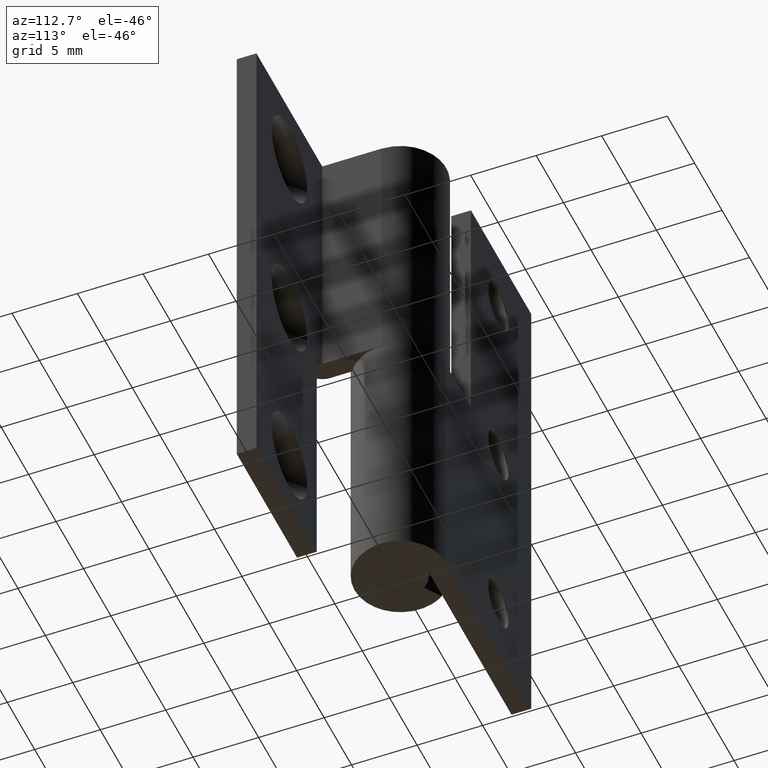
[diagram: clean part render]
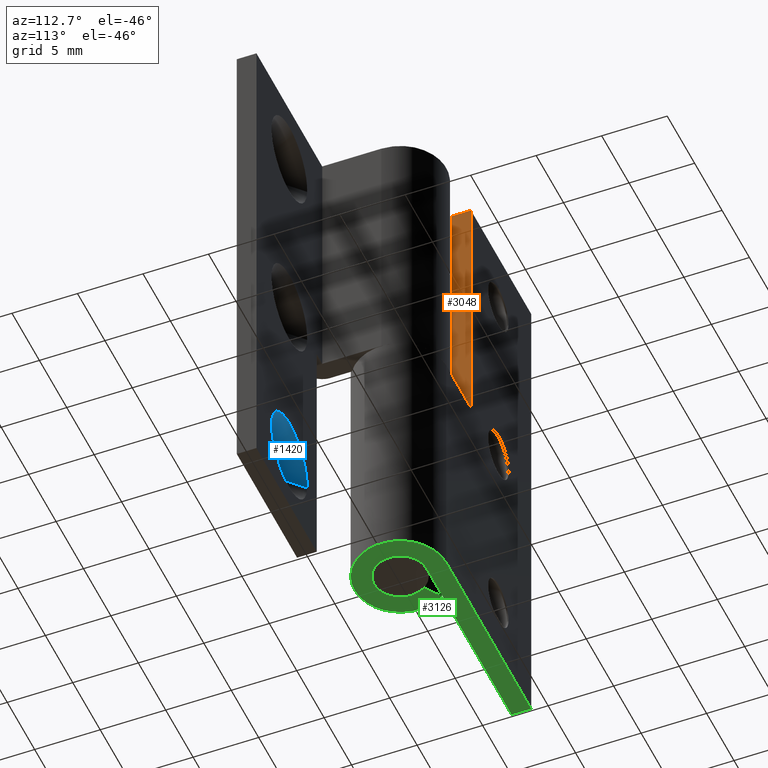
[diagram: same view with three faces highlighted in distinct colors, each labeled with its STEP entity id]
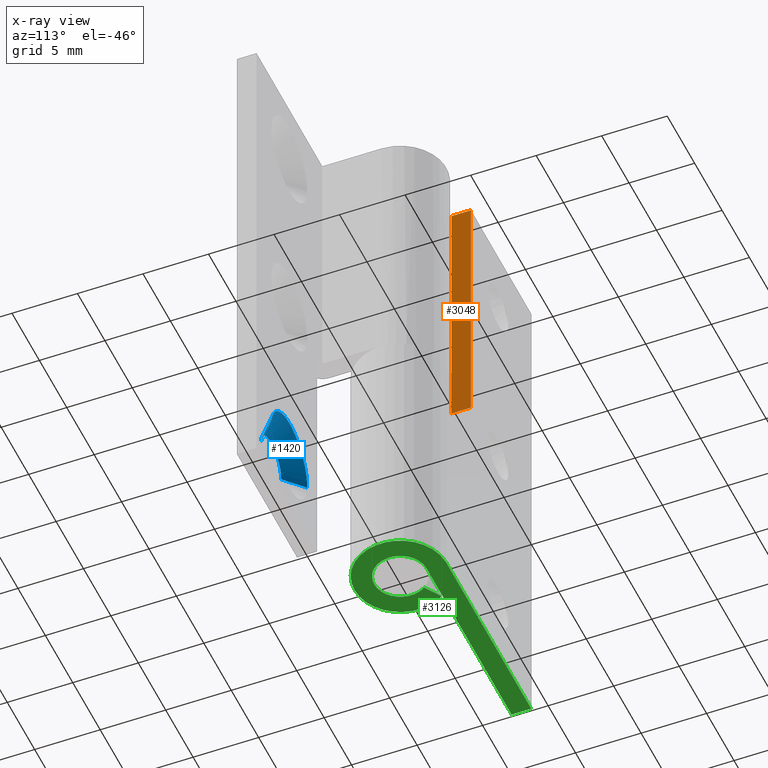
[diagram: x-ray of the same camera — body ghosted, the three highlighted faces saturated]
A machine part, auxiliary view with three faces highlighted in distinct colors.
The next image is the same camera in x-ray (body ghosted, the three faces saturated) — at least one of them is partly hidden behind the body in this view.
Their STEP definitions:

[orange] entity #3048 — the highlighted face is a freeform B-spline surface patch.
#2948=CARTESIAN_POINT('',(-4.500000000000000,3.499999999999950,20.0));
#2949=VERTEX_POINT('',#2948);
#2957=CARTESIAN_POINT('',(-4.500000000000000,2.0,20.0));
#2958=VERTEX_POINT('',#2957);
#2959=CARTESIAN_POINT('',(-4.500000000000000,2.0,20.0));
#2960=CARTESIAN_POINT('',(-4.500000000000000,3.499999999999950,20.0));
#2961=QUASI_UNIFORM_CURVE('',1,(#2959,#2960),.UNSPECIFIED.,.F.,.U.);
#2962=EDGE_CURVE('',#2958,#2949,#2961,.T.);
#3021=CARTESIAN_POINT('',(-4.500000000000000,1.925075002907291,40.998999961236123));
#3022=CARTESIAN_POINT('',(-4.500000000000000,1.925075002907291,19.000999502322081));
#3023=CARTESIAN_POINT('',(-4.500000000000000,3.574925037325844,40.998999961236123));
#3024=CARTESIAN_POINT('',(-4.500000000000000,3.574925037325844,19.000999502322081));
#3025=B_SPLINE_SURFACE_WITH_KNOTS('',1,1,((#3021,#3023),(#3022,#3024)),.UNSPECIFIED.,.F.,.F.,.U.,(2,2),(2,2),(0.0,21.998000458914049),(0.041708334948495,0.958291687403247),.UNSPECIFIED.);
#3026=ORIENTED_EDGE('',*,*,#2962,.T.);
#3027=CARTESIAN_POINT('',(-4.500000000000000,3.500000000000000,40.0));
#3028=VERTEX_POINT('',#3027);
#3029=CARTESIAN_POINT('',(-4.500000000000000,3.500000000000000,40.0));
#3030=CARTESIAN_POINT('',(-4.500000000000000,3.499999999999950,20.0));
#3031=QUASI_UNIFORM_CURVE('',1,(#3029,#3030),.UNSPECIFIED.,.F.,.U.);
#3032=EDGE_CURVE('',#3028,#2949,#3031,.T.);
#3033=ORIENTED_EDGE('',*,*,#3032,.F.);
#3034=CARTESIAN_POINT('',(-4.500000000000000,2.0,40.0));
#3035=VERTEX_POINT('',#3034);
#3036=CARTESIAN_POINT('',(-4.500000000000000,2.0,40.0));
#3037=CARTESIAN_POINT('',(-4.500000000000000,3.500000000000000,40.0));
#3038=QUASI_UNIFORM_CURVE('',1,(#3036,#3037),.UNSPECIFIED.,.F.,.U.);
#3039=EDGE_CURVE('',#3035,#3028,#3038,.T.);
#3040=ORIENTED_EDGE('',*,*,#3039,.F.);
#3041=CARTESIAN_POINT('',(-4.500000000000000,2.0,20.0));
#3042=CARTESIAN_POINT('',(-4.500000000000000,2.0,40.0));
#3043=QUASI_UNIFORM_CURVE('',1,(#3041,#3042),.UNSPECIFIED.,.F.,.U.);
#3044=EDGE_CURVE('',#2958,#3035,#3043,.T.);
#3045=ORIENTED_EDGE('',*,*,#3044,.F.);
#3046=EDGE_LOOP('',(#3026,#3033,#3040,#3045));
#3047=FACE_OUTER_BOUND('',#3046,.T.);
#3048=ADVANCED_FACE('',(#3047),#3025,.T.);

[blue] entity #1420 — the highlighted face is a freeform B-spline surface patch.
#1128=CARTESIAN_POINT('',(7.653450622905748,-5.899999999948507,4.887060201664394));
#1129=VERTEX_POINT('',#1128);
#1210=CARTESIAN_POINT('',(11.337067623776241,-5.899999999947706,5.218363334528995));
#1211=VERTEX_POINT('',#1210);
#1261=CARTESIAN_POINT('',(9.500000000000000,-5.900000000000000,6.850000000000001));
#1262=VERTEX_POINT('',#1261);
#1263=CARTESIAN_POINT('',(7.653450622905748,-5.899999999948507,4.887060201664394));
#1264=CARTESIAN_POINT('',(7.650000000000000,-5.900000000000000,4.943477387507420));
#1265=CARTESIAN_POINT('',(7.650000000000000,-5.900000000000000,5.0));
#1266=CARTESIAN_POINT('',(7.650000000000000,-5.900000000000000,6.850000000000001));
#1267=CARTESIAN_POINT('',(9.500000000000000,-5.900000000000000,6.850000000000001));
#1275=(BOUNDED_CURVE()B_SPLINE_CURVE(2,(#1263,#1264,#1265,#1266,#1267),.UNSPECIFIED.,.F.,.U.)B_SPLINE_CURVE_WITH_KNOTS((3,2,3),(0.739332962169251,0.750000000000000,1.0),.UNSPECIFIED.)CURVE()GEOMETRIC_REPRESENTATION_ITEM()RATIONAL_B_SPLINE_CURVE((0.976072041517355,0.987502787818188,1.0,0.707106781186548,1.0))REPRESENTATION_ITEM(''));
#1276=EDGE_CURVE('',#1129,#1262,#1275,.T.);
#1278=CARTESIAN_POINT('',(9.500000000000000,-5.900000000000000,6.850000000000001));
#1279=CARTESIAN_POINT('',(11.143122872275367,-5.899999999999999,6.850000000000001));
#1280=CARTESIAN_POINT('',(11.337067623776239,-5.899999999947706,5.218363334528995));
#1288=(BOUNDED_CURVE()B_SPLINE_CURVE(2,(#1278,#1279,#1280),.UNSPECIFIED.,.F.,.U.)B_SPLINE_CURVE_WITH_KNOTS((3,3),(0.0,0.229562473440609),.UNSPECIFIED.)CURVE()GEOMETRIC_REPRESENTATION_ITEM()RATIONAL_B_SPLINE_CURVE((1.0,0.731050832940810,0.956026754040813))REPRESENTATION_ITEM(''));
#1289=EDGE_CURVE('',#1262,#1211,#1288,.T.);
#1317=CARTESIAN_POINT('',(12.727280960683350,-4.499999999979497,5.383611262796149));
#1318=VERTEX_POINT('',#1317);
#1319=CARTESIAN_POINT('',(11.337067623776241,-5.899999999947706,5.218363334528995));
#1320=CARTESIAN_POINT('',(12.727280960683350,-4.499999999979497,5.383611262796149));
#1321=QUASI_UNIFORM_CURVE('',1,(#1319,#1320),.UNSPECIFIED.,.F.,.U.);
#1322=EDGE_CURVE('',#1211,#1318,#1321,.T.);
#1341=CARTESIAN_POINT('',(6.256061905112270,-4.499999999968992,4.801592246276229));
#1342=VERTEX_POINT('',#1341);
#1356=CARTESIAN_POINT('',(7.653450622905748,-5.899999999948507,4.887060201664394));
#1357=CARTESIAN_POINT('',(6.256061905112270,-4.499999999968992,4.801592246276229));
#1358=QUASI_UNIFORM_CURVE('',1,(#1356,#1357),.UNSPECIFIED.,.F.,.U.);
#1359=EDGE_CURVE('',#1129,#1342,#1358,.T.);
#1366=CARTESIAN_POINT('',(7.688385340864312,-5.935000000000001,4.889196900744235));
#1367=CARTESIAN_POINT('',(7.577582241608548,-5.935000000000001,6.700811559879923));
#1368=CARTESIAN_POINT('',(9.389196900744235,-5.935000000000001,6.811614659135688));
#1369=CARTESIAN_POINT('',(11.100001435873695,-5.935000000000001,6.916251947069537));
#1370=CARTESIAN_POINT('',(11.302312290350052,-5.935000000000001,5.214232135902016));
#1371=CARTESIAN_POINT('',(6.220253819235548,-4.464124999999999,4.799402130155902));
#1372=CARTESIAN_POINT('',(6.019655949391452,-4.464124999999999,8.079148310920353));
#1373=CARTESIAN_POINT('',(9.299402130155903,-4.464124999999999,8.279746180764452));
#1374=CARTESIAN_POINT('',(12.396641717962247,-4.464125000000000,8.469181469188493));
#1375=CARTESIAN_POINT('',(12.762905177440219,-4.464125000000000,5.387845740802777));
#1383=(BOUNDED_SURFACE()B_SPLINE_SURFACE(2,1,((#1366,#1371),(#1367,#1372),(#1368,#1373),(#1369,#1374),(#1370,#1375)),.UNSPECIFIED.,.F.,.F.,.U.)B_SPLINE_SURFACE_WITH_KNOTS((3,2,3),(2,2),(0.0,5.444215957050773,10.670663275819511),(0.0,2.080131373555531),.UNSPECIFIED.)GEOMETRIC_REPRESENTATION_ITEM()RATIONAL_B_SPLINE_SURFACE(((1.0,1.0),(0.707106781186548,0.707106781186548),(1.0,1.0),(0.718822509939086,0.718822509939086),(0.977505800795127,0.977505800795127)))REPRESENTATION_ITEM('')SURFACE());
#1384=ORIENTED_EDGE('',*,*,#1289,.F.);
#1385=ORIENTED_EDGE('',*,*,#1276,.F.);
#1386=ORIENTED_EDGE('',*,*,#1359,.T.);
#1387=CARTESIAN_POINT('',(9.500000000000000,-4.500000000000000,8.250000000000000));
#1388=VERTEX_POINT('',#1387);
#1389=CARTESIAN_POINT('',(6.256061905112270,-4.499999999968992,4.801592246276228));
#1390=CARTESIAN_POINT('',(6.250000000000000,-4.500000000000000,4.900703519045339));
#1391=CARTESIAN_POINT('',(6.250000000000000,-4.500000000000000,5.0));
#1392=CARTESIAN_POINT('',(6.249999999999999,-4.500000000000000,8.250000000000000));
#1393=CARTESIAN_POINT('',(9.500000000000000,-4.500000000000000,8.250000000000000));
#1401=(BOUNDED_CURVE()B_SPLINE_CURVE(2,(#1389,#1390,#1391,#1392,#1393),.UNSPECIFIED.,.F.,.U.)B_SPLINE_CURVE_WITH_KNOTS((3,2,3),(0.739332962217118,0.750000000000000,1.0),.UNSPECIFIED.)CURVE()GEOMETRIC_REPRESENTATION_ITEM()RATIONAL_B_SPLINE_CURVE((0.976072041619944,0.987502787874268,1.0,0.707106781186547,1.0))REPRESENTATION_ITEM(''));
#1402=EDGE_CURVE('',#1342,#1388,#1401,.T.);
#1403=ORIENTED_EDGE('',*,*,#1402,.T.);
#1404=CARTESIAN_POINT('',(9.500000000000000,-4.500000000000000,8.250000000000000));
#1405=CARTESIAN_POINT('',(12.386567209055038,-4.500000000000000,8.249999999999998));
#1406=CARTESIAN_POINT('',(12.727280960683350,-4.499999999979497,5.383611262796149));
#1414=(BOUNDED_CURVE()B_SPLINE_CURVE(2,(#1404,#1405,#1406),.UNSPECIFIED.,.F.,.U.)B_SPLINE_CURVE_WITH_KNOTS((3,3),(0.0,0.229562473498964),.UNSPECIFIED.)CURVE()GEOMETRIC_REPRESENTATION_ITEM()RATIONAL_B_SPLINE_CURVE((1.0,0.731050832872442,0.956026754155191))REPRESENTATION_ITEM(''));
#1415=EDGE_CURVE('',#1388,#1318,#1414,.T.);
#1416=ORIENTED_EDGE('',*,*,#1415,.T.);
#1417=ORIENTED_EDGE('',*,*,#1322,.F.);
#1418=EDGE_LOOP('',(#1384,#1385,#1386,#1403,#1416,#1417));
#1419=FACE_OUTER_BOUND('',#1418,.T.);
#1420=ADVANCED_FACE('',(#1419),#1383,.F.);

[green] entity #3126 — the highlighted face is a freeform B-spline surface patch.
#3049=CARTESIAN_POINT('',(-16.449014304354900,-3.846650859193034,0.0));
#3050=CARTESIAN_POINT('',(4.448300923649311,-3.846650859193034,0.0));
#3051=CARTESIAN_POINT('',(-16.449014304354900,3.849507494554410,0.0));
#3052=CARTESIAN_POINT('',(4.448300923649311,3.849507494554410,0.0));
#3053=B_SPLINE_SURFACE_WITH_KNOTS('',1,1,((#3049,#3051),(#3050,#3052)),.UNSPECIFIED.,.F.,.F.,.U.,(2,2),(2,2),(0.0,20.897315228004210),(0.0,7.696158353747445),.UNSPECIFIED.);
#3054=CARTESIAN_POINT('',(-15.500000000000000,2.0,0.0));
#3055=VERTEX_POINT('',#3054);
#3056=CARTESIAN_POINT('',(-15.500000000000000,3.500000000000000,0.0));
#3057=VERTEX_POINT('',#3056);
#3058=CARTESIAN_POINT('',(-15.500000000000000,2.0,0.0));
#3059=CARTESIAN_POINT('',(-15.500000000000000,3.500000000000000,0.0));
#3060=QUASI_UNIFORM_CURVE('',1,(#3058,#3059),.UNSPECIFIED.,.F.,.U.);
#3061=EDGE_CURVE('',#3055,#3057,#3060,.T.);
#3062=ORIENTED_EDGE('',*,*,#3061,.T.);
#3063=CARTESIAN_POINT('',(0.0,3.500000000000000,0.0));
#3064=VERTEX_POINT('',#3063);
#3065=CARTESIAN_POINT('',(-15.500000000000000,3.500000000000000,0.0));
#3066=CARTESIAN_POINT('',(0.0,3.500000000000000,0.0));
#3067=QUASI_UNIFORM_CURVE('',1,(#3065,#3066),.UNSPECIFIED.,.F.,.U.);
#3068=EDGE_CURVE('',#3057,#3064,#3067,.T.);
#3069=ORIENTED_EDGE('',*,*,#3068,.T.);
#3070=CARTESIAN_POINT('',(-2.906458325866725,1.950000000000000,0.0));
#3071=VERTEX_POINT('',#3070);
#3072=CARTESIAN_POINT('',(0.0,3.500000000000000,0.0));
#3073=CARTESIAN_POINT('',(2.732759340469793,3.500000000000000,0.0));
#3074=CARTESIAN_POINT('',(3.395511382448716,0.848824158269077,0.0));
#3075=CARTESIAN_POINT('',(4.058263424427640,-1.802351683461844,0.0));
#3076=CARTESIAN_POINT('',(1.646966909200060,-3.088284313336452,0.0));
#3077=CARTESIAN_POINT('',(-0.764329606027519,-4.374216943211060,0.0));
#3078=CARTESIAN_POINT('',(-2.596662639363706,-2.346772919848172,0.0));
#3079=CARTESIAN_POINT('',(-4.428995672699895,-0.319328896485282,0.0));
#3080=CARTESIAN_POINT('',(-2.906458325866723,1.950000000000001,0.0));
#3088=(BOUNDED_CURVE()B_SPLINE_CURVE(2,(#3072,#3073,#3074,#3075,#3076,#3077,#3078,#3079,#3080),.UNSPECIFIED.,.F.,.U.)B_SPLINE_CURVE_WITH_KNOTS((3,2,2,2,3),(0.0,0.250000000000000,0.500000000000000,0.750000000000000,1.0),.UNSPECIFIED.)CURVE()GEOMETRIC_REPRESENTATION_ITEM()RATIONAL_B_SPLINE_CURVE((1.0,0.788200858942972,1.0,0.788200858942972,1.0,0.788200858942972,1.0,0.788200858942972,1.0))REPRESENTATION_ITEM(''));
#3089=EDGE_CURVE('',#3064,#3071,#3088,.T.);
#3090=ORIENTED_EDGE('',*,*,#3089,.T.);
#3091=CARTESIAN_POINT('',(-1.660833329066700,1.114285714285714,0.0));
#3092=VERTEX_POINT('',#3091);
#3093=CARTESIAN_POINT('',(-2.906458325866725,1.950000000000000,0.0));
#3094=CARTESIAN_POINT('',(-1.660833329066700,1.114285714285714,0.0));
#3095=QUASI_UNIFORM_CURVE('',1,(#3093,#3094),.UNSPECIFIED.,.F.,.U.);
#3096=EDGE_CURVE('',#3071,#3092,#3095,.T.);
#3097=ORIENTED_EDGE('',*,*,#3096,.T.);
#3098=CARTESIAN_POINT('',(1.898817E-015,2.0,0.0));
#3099=VERTEX_POINT('',#3098);
#3100=CARTESIAN_POINT('',(0.0,2.0,0.0));
#3101=CARTESIAN_POINT('',(1.561576765982740,2.0,0.0));
#3102=CARTESIAN_POINT('',(1.940292218542124,0.485042376153758,0.0));
#3103=CARTESIAN_POINT('',(2.319007671101507,-1.029915247692481,0.0));
#3104=CARTESIAN_POINT('',(0.941123948114322,-1.764733893335115,0.0));
#3105=CARTESIAN_POINT('',(-0.436759774872864,-2.499552538977748,0.0));
#3106=CARTESIAN_POINT('',(-1.483807222493544,-1.341013097056101,0.0));
#3107=CARTESIAN_POINT('',(-2.530854670114226,-0.182473655134451,0.0));
#3108=CARTESIAN_POINT('',(-1.660833329066701,1.114285714285712,0.0));
#3116=(BOUNDED_CURVE()B_SPLINE_CURVE(2,(#3100,#3101,#3102,#3103,#3104,#3105,#3106,#3107,#3108),.UNSPECIFIED.,.F.,.U.)B_SPLINE_CURVE_WITH_KNOTS((3,2,2,2,3),(0.0,0.250000000000000,0.500000000000000,0.750000000000000,1.0),.UNSPECIFIED.)CURVE()GEOMETRIC_REPRESENTATION_ITEM()RATIONAL_B_SPLINE_CURVE((1.0,0.788200858942973,1.0,0.788200858942973,1.0,0.788200858942973,1.0,0.788200858942973,1.0))REPRESENTATION_ITEM(''));
#3117=EDGE_CURVE('',#3099,#3092,#3116,.T.);
#3118=ORIENTED_EDGE('',*,*,#3117,.F.);
#3119=CARTESIAN_POINT('',(1.898817E-015,2.0,0.0));
#3120=CARTESIAN_POINT('',(-15.500000000000000,2.0,0.0));
#3121=QUASI_UNIFORM_CURVE('',1,(#3119,#3120),.UNSPECIFIED.,.F.,.U.);
#3122=EDGE_CURVE('',#3099,#3055,#3121,.T.);
#3123=ORIENTED_EDGE('',*,*,#3122,.T.);
#3124=EDGE_LOOP('',(#3062,#3069,#3090,#3097,#3118,#3123));
#3125=FACE_OUTER_BOUND('',#3124,.T.);
#3126=ADVANCED_FACE('',(#3125),#3053,.F.);